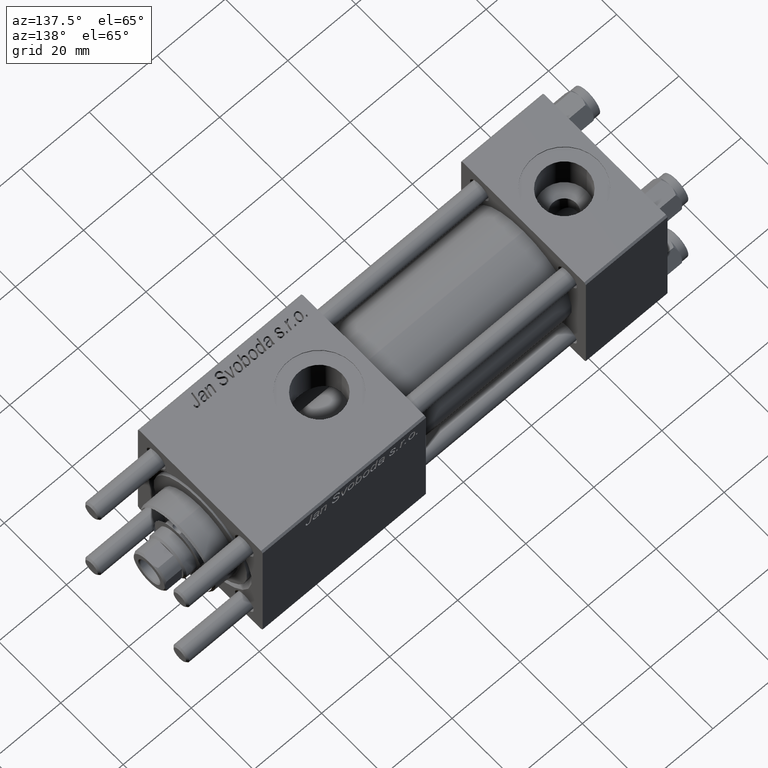
[diagram: clean part render]
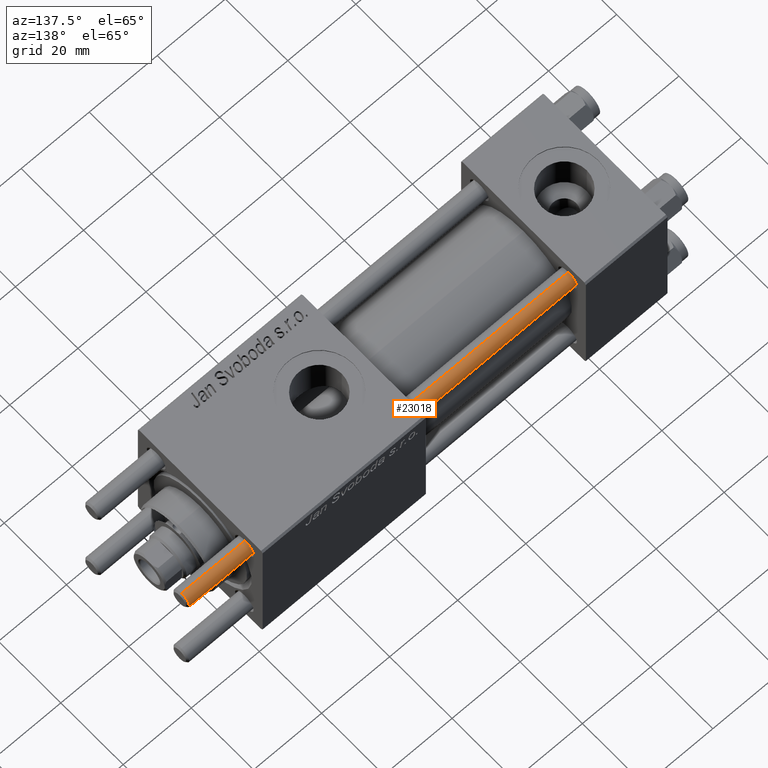
[diagram: same view with one face highlighted and labeled with its STEP entity id]
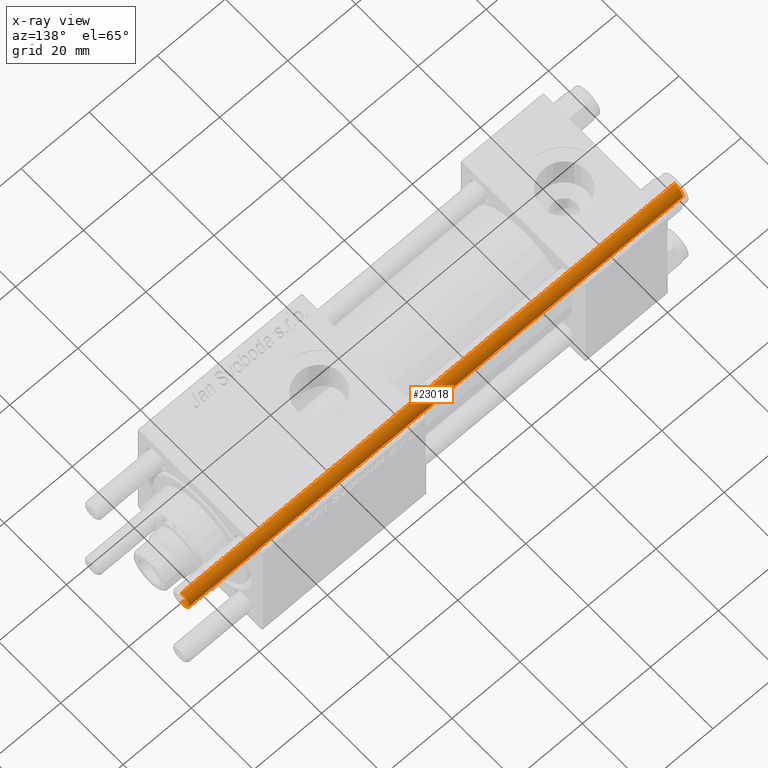
[diagram: x-ray of the same camera — body ghosted, the highlighted face saturated]
A machine part, auxiliary view. The second image highlights one B-rep face of the part: STEP entity #23018.
The next image is the same camera in x-ray: the body ghosted, the highlighted face saturated — about 0% of this face is hidden behind the body in this view.
In plain terms, the highlighted cylindrical surface (edge-blend (fillet) strip) has radius 2.5 mm, axis along (1, -0, -0).
Its self-contained STEP definition (entity closure, byte-faithful):
#2808 = LINE ( 'NONE', #30937, #21255 ) ;
#3164 = DIRECTION ( 'NONE',  ( -0.000000000000000000, -0.000000000000000000, -1.000000000000000000 ) ) ;
#3403 = EDGE_CURVE ( 'NONE', #37817, #24270, #29391, .T. ) ;
#3459 = CARTESIAN_POINT ( 'NONE',  ( 2.500000000000000000, 3.061616997868383141E-16, 146.0000000000000000 ) ) ;
#3901 = DIRECTION ( 'NONE',  ( 0.000000000000000000, 0.000000000000000000, -1.000000000000000000 ) ) ;
#4777 = CARTESIAN_POINT ( 'NONE',  ( -2.500000000000000000, 0.000000000000000000, 145.5000000000000284 ) ) ;
#7102 = CIRCLE ( 'NONE', #26925, 2.500000000000000000 ) ;
#10327 = VECTOR ( 'NONE', #53219, 1000.000000000000000 ) ;
#16873 = DIRECTION ( 'NONE',  ( 1.000000000000000000, 0.000000000000000000, 0.000000000000000000 ) ) ;
#18994 = CARTESIAN_POINT ( 'NONE',  ( 2.500000000000000000, 3.061616997868383141E-16, 145.5000000000000284 ) ) ;
#19062 = EDGE_CURVE ( 'NONE', #52905, #24270, #2808, .T. ) ;
#19478 = EDGE_CURVE ( 'NONE', #52905, #47661, #7102, .T. ) ;
#19831 = EDGE_LOOP ( 'NONE', ( #32349, #57795, #27341, #39917 ) ) ;
#21255 = VECTOR ( 'NONE', #35954, 1000.000000000000000 ) ;
#22805 = AXIS2_PLACEMENT_3D ( 'NONE', #45421, #3164, #54603 ) ;
#23018 = ADVANCED_FACE ( 'NONE', ( #39582 ), #57670, .T. ) ;
#24270 = VERTEX_POINT ( 'NONE', #25910 ) ;
#25910 = CARTESIAN_POINT ( 'NONE',  ( -2.500000000000000000, 0.000000000000000000, 0.5000000000000559552 ) ) ;
#26925 = AXIS2_PLACEMENT_3D ( 'NONE', #44492, #3901, #40044 ) ;
#27341 = ORIENTED_EDGE ( 'NONE', *, *, #3403, .T. ) ;
#29391 = CIRCLE ( 'NONE', #36953, 2.500000000000000000 ) ;
#30937 = CARTESIAN_POINT ( 'NONE',  ( -2.500000000000000000, 0.000000000000000000, 146.0000000000000000 ) ) ;
#32349 = ORIENTED_EDGE ( 'NONE', *, *, #19478, .T. ) ;
#35954 = DIRECTION ( 'NONE',  ( -0.000000000000000000, -0.000000000000000000, -1.000000000000000000 ) ) ;
#36953 = AXIS2_PLACEMENT_3D ( 'NONE', #52154, #39395, #16873 ) ;
#37817 = VERTEX_POINT ( 'NONE', #51725 ) ;
#39395 = DIRECTION ( 'NONE',  ( -0.000000000000000000, -0.000000000000000000, 1.000000000000000000 ) ) ;
#39582 = FACE_OUTER_BOUND ( 'NONE', #19831, .T. ) ;
#39917 = ORIENTED_EDGE ( 'NONE', *, *, #19062, .F. ) ;
#40044 = DIRECTION ( 'NONE',  ( 1.000000000000000000, 0.000000000000000000, 0.000000000000000000 ) ) ;
#44052 = LINE ( 'NONE', #3459, #10327 ) ;
#44492 = CARTESIAN_POINT ( 'NONE',  ( 0.000000000000000000, 0.000000000000000000, 145.5000000000000284 ) ) ;
#45421 = CARTESIAN_POINT ( 'NONE',  ( 0.000000000000000000, 0.000000000000000000, 146.0000000000000000 ) ) ;
#47661 = VERTEX_POINT ( 'NONE', #18994 ) ;
#51725 = CARTESIAN_POINT ( 'NONE',  ( 2.500000000000000000, 3.061616997868383141E-16, 0.5000000000000559552 ) ) ;
#52154 = CARTESIAN_POINT ( 'NONE',  ( 0.000000000000000000, 0.000000000000000000, 0.5000000000000559552 ) ) ;
#52905 = VERTEX_POINT ( 'NONE', #4777 ) ;
#53219 = DIRECTION ( 'NONE',  ( -0.000000000000000000, -0.000000000000000000, -1.000000000000000000 ) ) ;
#54603 = DIRECTION ( 'NONE',  ( -1.000000000000000000, 0.000000000000000000, 0.000000000000000000 ) ) ;
#57670 = CYLINDRICAL_SURFACE ( 'NONE', #22805, 2.500000000000000000 ) ;
#57795 = ORIENTED_EDGE ( 'NONE', *, *, #58408, .T. ) ;
#58408 = EDGE_CURVE ( 'NONE', #47661, #37817, #44052, .T. ) ;